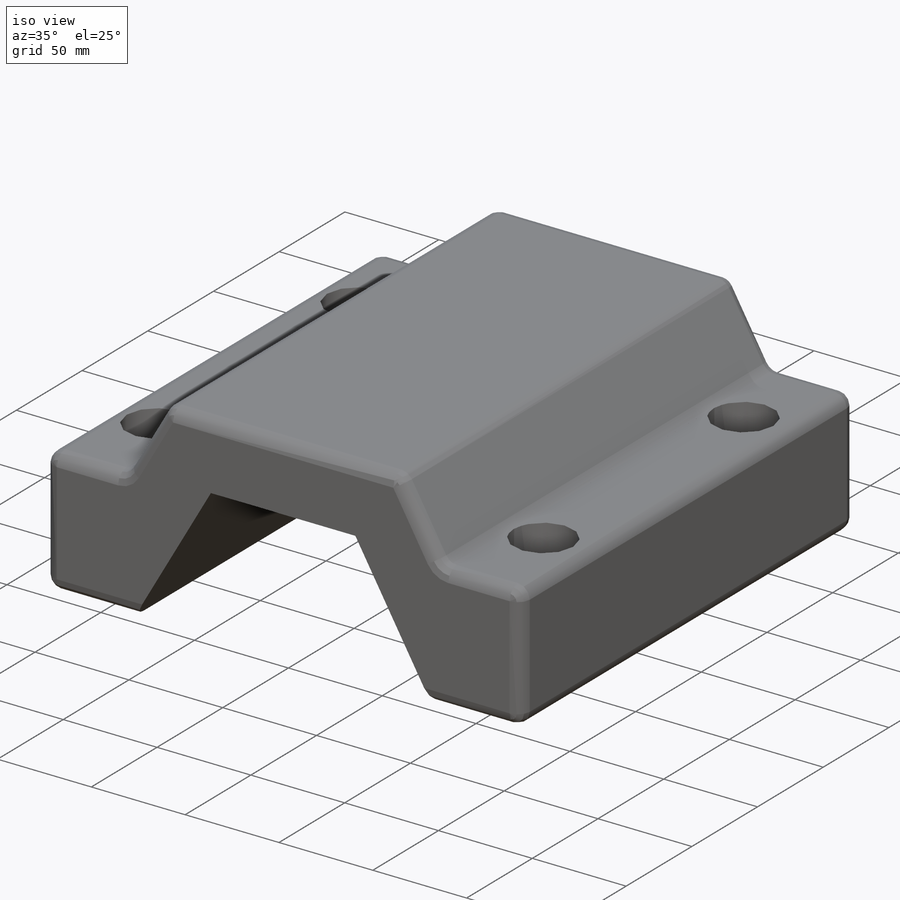
[diagram: iso view]
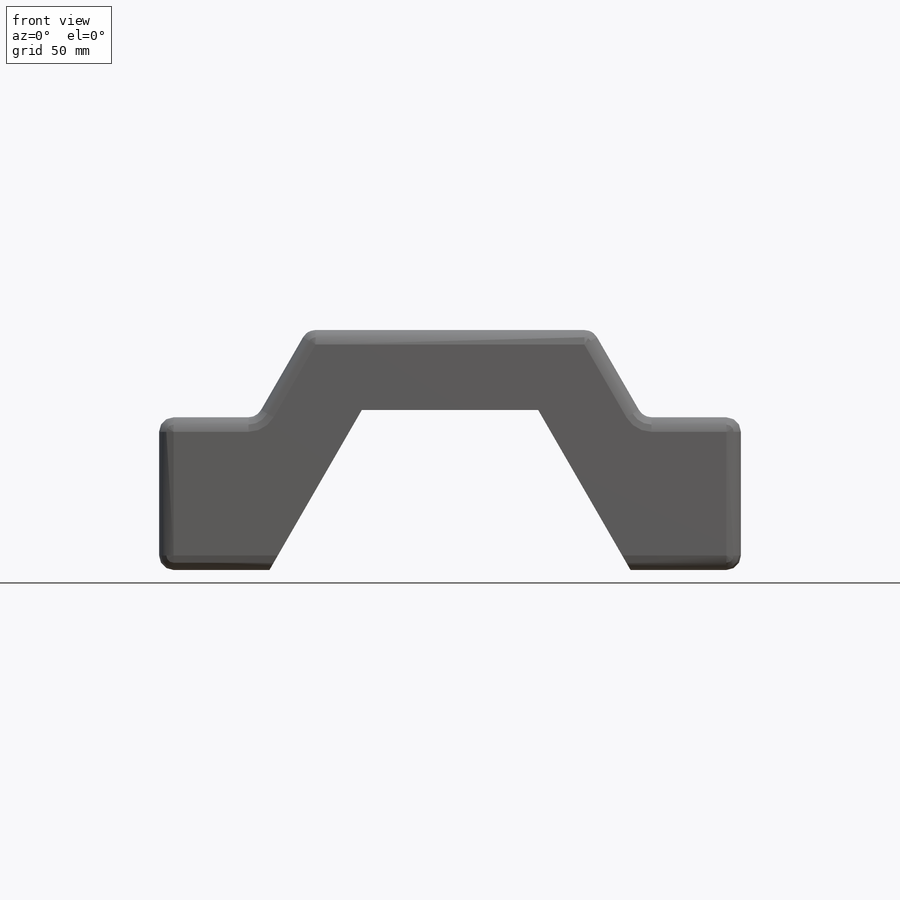
[diagram: front view]
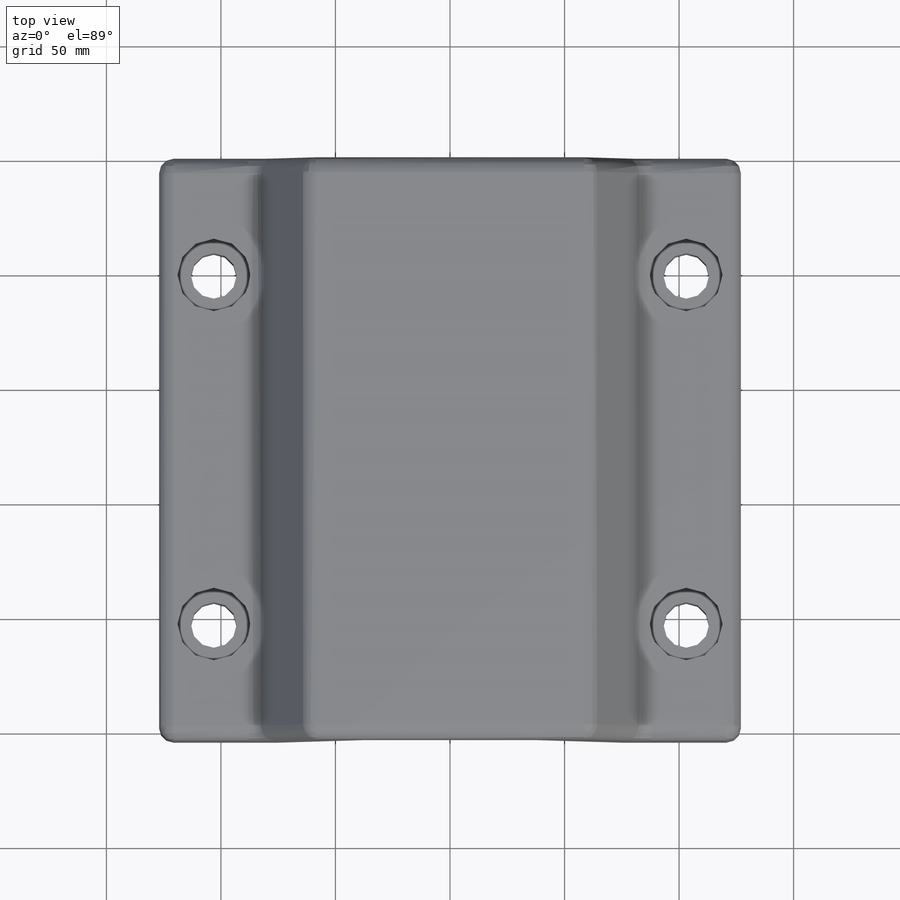
[diagram: top view]
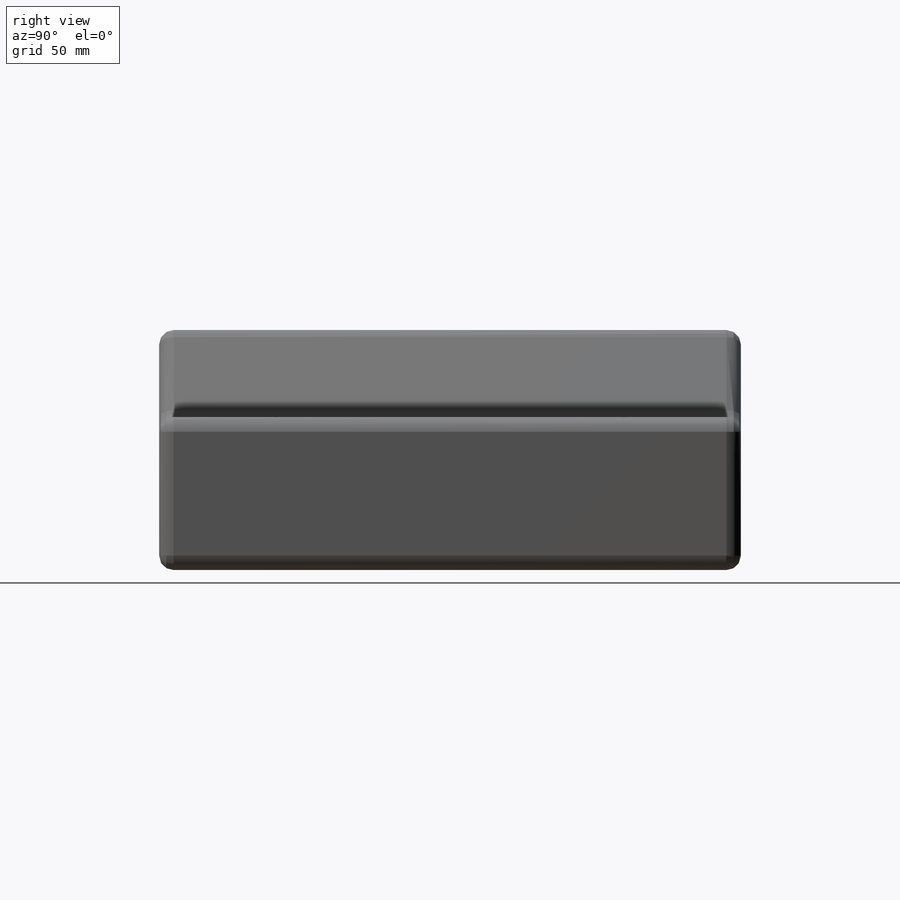
[diagram: right view]
SOLIDWORKS PART (.sldprt)
format: sldprt  version: not decoded by parser v0  size: 304,128 bytes
history: native  units: mm
features: sketch x5, plane x3, material x1, extrude x1, cut_extrude x1, mirror x1, fillet x1, hole x1 (+11 scaffold rows collapsed)
feature tree (25):
  scaffold x11  (default folders/planes/origin — collapsed)
  material  "A356-T6"
  plane  "Plane1"
  plane  "Plane2"
  plane  "Plane3"
  sketch  "Sketch1"  dims[D1=3.175mm D2=107.95mm D3=254.0mm D4=69.85mm D5=73.025mm D6=120.0deg]
  extrude  "Base-Extrude"  Depth=254mm
  sketch  "HOLE PATTERN Sketch2"  dims[D5=19.8374mm D1=23.876mm D2=23.876mm D3=50.8mm D4=50.8mm]
  sketch  "Sketch4"  dims[D1=60.0deg D2=38.1mm D3=38.1mm]
  cut_extrude  "Cut-Extrude3"  [1 undecoded]
  mirror  "Mirror1"
  fillet  "Fillet1"  Radius=6.35mm
  hole  "CBORE for 3/4 Socket Head Cap Screw1"  Diameter=19.84248mm Depth=104.775mm
  sketch  "Sketch6"
  sketch  "Sketch5"  dims[hole-wizard template sketch: 41 standard entries collapsed; hole parameters kept: c12.Thru Hole Dia.=~19.84248mm c12.Thru Hole Depth=104.775mm c12.C'Bore Dia.=31.75mm c12.C'Bore Depth=63.5mm]
decode coverage: 7 of 10 modeling features carry decoded parameters
note: ~ marks probable driven/reference dimensions
note: 1 parameter value undecoded
note: suppression state not decoded; provenance and decode notes live in map.json
